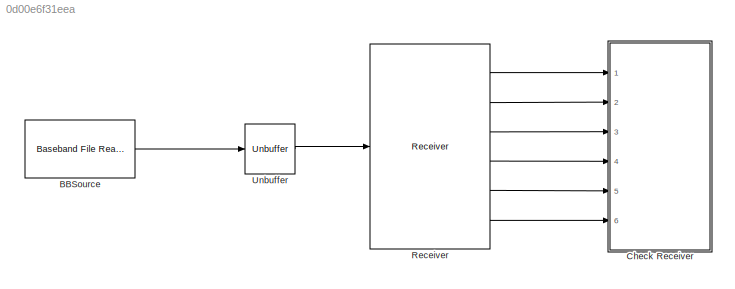
MODEL slx_0d00e6f31eea
KIND model
CONFIG AbsTol = auto
CONFIG EnableMultiTasking = off
CONFIG FixedStep = auto
CONFIG InitFcn = barker = comm.BarkerCode('SamplesPerFrame', 28, 'Length', 11);\nseq = barker()+1;\nM = 4;\nhPSKModTrain   = comm.PSKModulator(M, ...\n    'PhaseOffset',pi/4, ...\n    'SymbolMapping','Binary');\nxPreambleSeq = hPSKModTrain(seq);\n\n\n%%%%%%%%%%%%\n\n% AGC Preamble\nreps = 5;\nbarker = comm.BarkerCode('SamplesPerFrame', 16, 'Length', 13);\nseq = barker()+1;\n%preamble = zeros(16*reps,1);\npreambleFull = repmat(seq...<+742ch>
CONFIG MaxStep = auto
CONFIG MinStep = auto
CONFIG RelTol = 1e-3
CONFIG SampleTimeConstraint = Unconstrained
CONFIG Solver = FixedStepDiscrete
CONFIG SolverName = FixedStepDiscrete
CONFIG StartTime = 0.0
CONFIG StopTime = 10.0
BLOCK [Reference] BBSource  REF=commsource2/Baseband File Reader
  Ports = [0, 1]
  SourceBlock = commsource2/Baseband File Reader
  SourceProductBaseCode = CM
  SourceProductName = Communications System Toolbox
  SourceType = Baseband File Reader
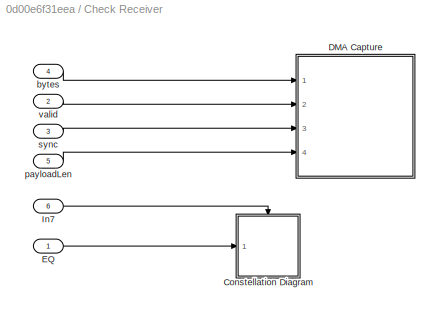
BLOCK [SubSystem] Check Receiver
  Ports = [6]
  RequestExecContextInheritance = off
  Variant = off
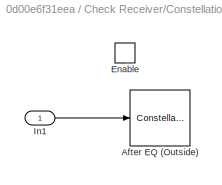
BLOCK [SubSystem] Check Receiver/Constellation Diagram
  Ports = [1, 0, 1]
  RequestExecContextInheritance = off
  Variant = off
BLOCK [ConstellationDiagram] Check Receiver/Constellation Diagram/After EQ (Outside)
  Ports = [1]
  ScopeSpecificationString = comm.scopes.ConstellationDiagramBlockCfg('CurrentConfiguration', extmgr.ConfigurationSet(extmgr.Configuration('Core','General UI',true),extmgr.Configuration('Core','Source UI',true),extmgr.Configuration('Sources','WiredSimulink',true),extmgr.Configuration('Visuals','Constellation',true,'LineProperties',struct('DisplayName','','Color',[1 1 0.0666666666666667],'LineStyle','none','LineWidth',0.5,'Mar...<+1151ch>
BLOCK [EnablePort] Check Receiver/Constellation Diagram/Enable
  Ports = []
BLOCK [Inport] Check Receiver/Constellation Diagram/In1
  IconDisplay = Port number
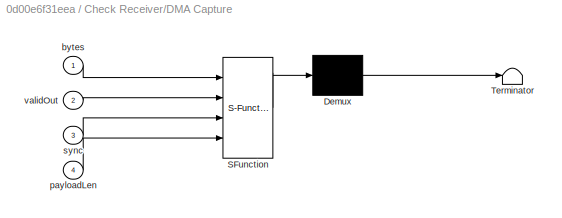
BLOCK [SubSystem] Check Receiver/DMA Capture
  ErrorFcn = Stateflow.Translate.translate
  PermitHierarchicalResolution = ExplicitOnly
  Ports = [4]
  RequestExecContextInheritance = off
  SFBlockType = MATLAB Function
  TreatAsAtomicUnit = on
  Variant = off
BLOCK [Demux] Check Receiver/DMA Capture/ Demux 
  Outputs = 1
  Ports = [1, 1]
BLOCK [S-Function] Check Receiver/DMA Capture/ SFunction 
  EnableBusSupport = on
  FunctionName = sf_sfun
  PortCounts = [4 1]
  Ports = [4, 1]
  SFcnIsStateOwnerBlock = off
  SFunctionDeploymentMode = off
  Tag = Stateflow S-Function RadioReceiver 3
BLOCK [Terminator] Check Receiver/DMA Capture/ Terminator 
BLOCK [Inport] Check Receiver/DMA Capture/bytes
  IconDisplay = Port number
BLOCK [Inport] Check Receiver/DMA Capture/payloadLen
  IconDisplay = Port number
  Port = 4
BLOCK [Inport] Check Receiver/DMA Capture/sync
  IconDisplay = Port number
  Port = 3
BLOCK [Inport] Check Receiver/DMA Capture/validOut
  IconDisplay = Port number
  Port = 2
BLOCK [Inport] Check Receiver/EQ
  IconDisplay = Port number
BLOCK [Inport] Check Receiver/In7
  IconDisplay = Port number
  Port = 6
BLOCK [Inport] Check Receiver/bytes
  IconDisplay = Port number
  Port = 4
BLOCK [Inport] Check Receiver/payloadLen
  IconDisplay = Port number
  Port = 5
BLOCK [Inport] Check Receiver/sync
  IconDisplay = Port number
  Port = 3
BLOCK [Inport] Check Receiver/valid
  IconDisplay = Port number
  Port = 2
BLOCK [Reference] Receiver  REF=RxFloatingPointLibrary/Receiver
  Ports = [1, 6]
  SourceBlock = RxFloatingPointLibrary/Receiver
  SourceType = SubSystem
BLOCK [Unbuffer] Unbuffer
  Ports = [1, 1]
LINE BBSource:1 -> Unbuffer:1
LINE Check Receiver/Constellation Diagram/In1:1 -> Check Receiver/Constellation Diagram/After EQ (Outside):1
LINE Check Receiver/EQ:1 -> Check Receiver/Constellation Diagram:1
LINE Check Receiver/In7:1 -> Check Receiver/Constellation Diagram:enable
LINE Check Receiver/bytes:1 -> Check Receiver/DMA Capture:1
LINE Check Receiver/payloadLen:1 -> Check Receiver/DMA Capture:4
LINE Check Receiver/sync:1 -> Check Receiver/DMA Capture:3
LINE Check Receiver/valid:1 -> Check Receiver/DMA Capture:2
LINE Receiver:1 -> Check Receiver:1
LINE Receiver:2 -> Check Receiver:2
LINE Receiver:3 -> Check Receiver:3
LINE Receiver:4 -> Check Receiver:4
LINE Receiver:5 -> Check Receiver:5
LINE Receiver:6 -> Check Receiver:6
LINE Unbuffer:1 -> Receiver:1
CHART Check Receiver/DMA Capture states=1 transitions=1
  STATE_LABEL 'eML_blk_kernel()'
  STATE_LABEL 'SCRIPT:\nfunction fcn(bytes, validOut, sync, payloadLen)\n\npersistent frameBuffer byteCounter fullPayloadBits\n\nif isempty(frameBuffer)\n    frameBuffer = false(2^16,1);\n    byteCounter = 0;\n    fullPayloadBits = uint16(0);\nend\n\nif validOut\n    if sync\n        byteCounter = 32;\n        frameBuffer(1:byteCounter) = bitget(bytes,1:32);\n        fullPayloadBits = uint16(payloadLen*8);\n        \n    elseif ...<+297ch>'
